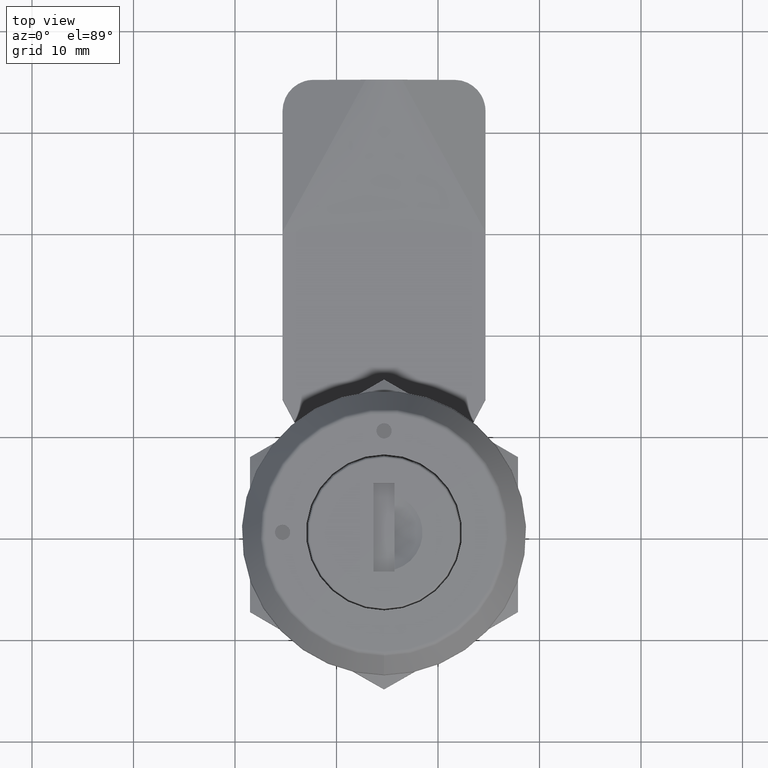
[diagram: clean part render]
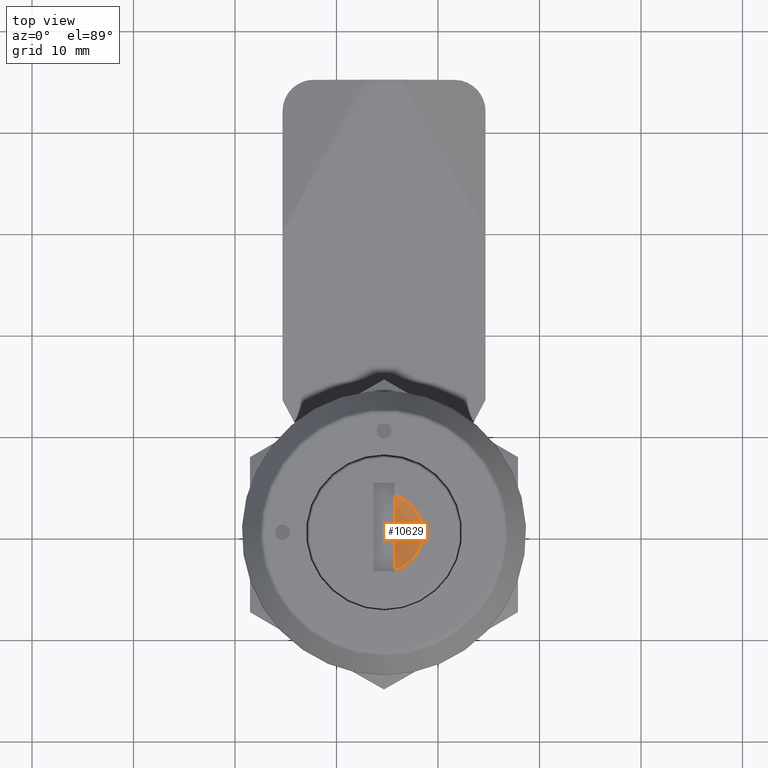
[diagram: same view with one face highlighted and labeled with its STEP entity id]
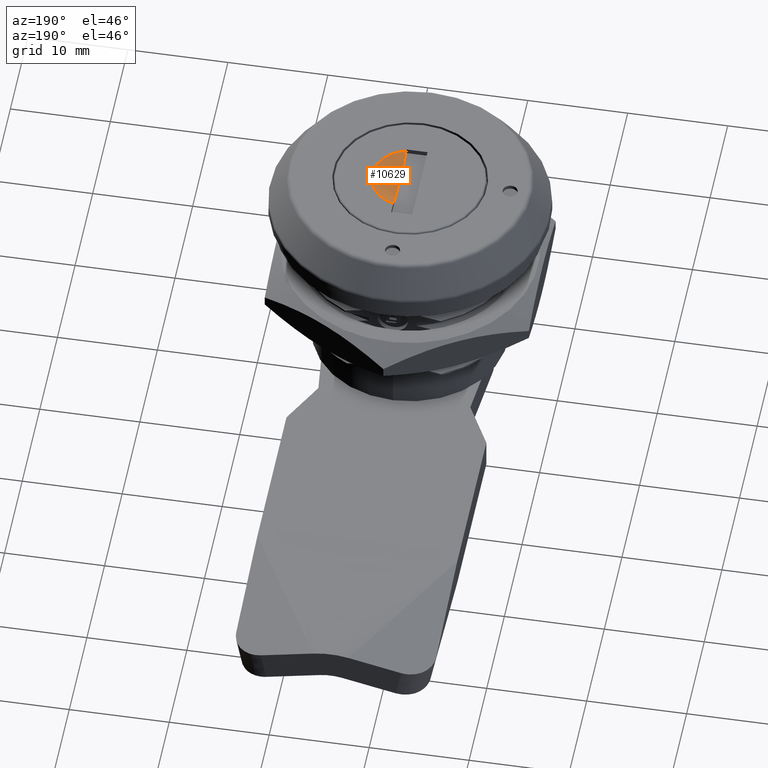
[diagram: same view with one face highlighted and labeled with its STEP entity id]
A machine part, top view. The second image highlights one B-rep face of the part: STEP entity #10629.
A second angle (auxiliary view) of the same face is appended — the face is thin or edge-on in the first view.
In plain terms, the highlighted spherical surface has radius 7.72 mm.
Its self-contained STEP definition (entity closure, byte-faithful):
#79=SPHERICAL_SURFACE('',#11388,7.72);
#3252=FACE_OUTER_BOUND('',#3908,.T.);
#3908=EDGE_LOOP('',(#9794,#9795));
#4206=CIRCLE('',#11389,7.64826123729232);
#4207=CIRCLE('',#11390,3.8);
#5211=VERTEX_POINT('',#43986);
#5212=VERTEX_POINT('',#43987);
#6746=EDGE_CURVE('',#5211,#5212,#4206,.T.);
#6747=EDGE_CURVE('',#5212,#5211,#4207,.T.);
#9794=ORIENTED_EDGE('',*,*,#6746,.F.);
#9795=ORIENTED_EDGE('',*,*,#6747,.F.);
#10629=ADVANCED_FACE('',(#3252),#79,.F.);
#11388=AXIS2_PLACEMENT_3D('',#43985,#13680,#13681);
#11389=AXIS2_PLACEMENT_3D('',#43988,#13682,#13683);
#11390=AXIS2_PLACEMENT_3D('',#43989,#13684,#13685);
#13680=DIRECTION('center_axis',(0.,-1.,0.));
#13681=DIRECTION('ref_axis',(-1.,0.,0.));
#13682=DIRECTION('center_axis',(0.,1.,0.));
#13683=DIRECTION('ref_axis',(0.,0.,1.));
#13684=DIRECTION('center_axis',(0.,0.,1.));
#13685=DIRECTION('ref_axis',(0.,-1.,0.));
#43985=CARTESIAN_POINT('Origin',(111.65657714,-42.7685140165975,-21.88172287074));
#43986=CARTESIAN_POINT('',(108.004522929851,-41.71851399463,-15.16172287074));
#43987=CARTESIAN_POINT('',(115.308631350149,-41.71851399463,-15.16172287074));
#43988=CARTESIAN_POINT('Origin',(111.65657714,-41.71851399463,-21.88172287074));
#43989=CARTESIAN_POINT('Origin',(111.65657714,-42.7685140165975,-15.16172287074));